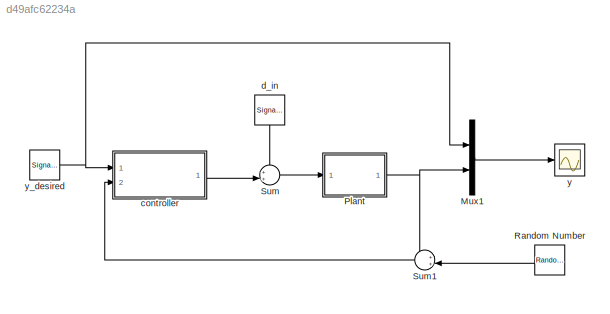
MODEL slx_d49afc62234a
KIND model
CONFIG AbsTol = auto
CONFIG EnableMultiTasking = on
CONFIG FixedStep = auto
CONFIG MaxStep = auto
CONFIG MinStep = auto
CONFIG RelTol = 1e-3
CONFIG SampleTimeConstraint = Unconstrained
CONFIG Solver = ode45
CONFIG SolverName = ode45
CONFIG StartTime = 0.0
CONFIG StopTime = 100
BLOCK [Mux] Mux1
  DisplayOption = bar
  Inputs = 2
  Ports = [2, 1]
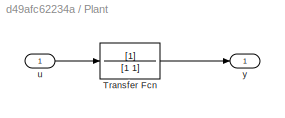
BLOCK [SubSystem] Plant
  Ports = [1, 1]
  RequestExecContextInheritance = off
BLOCK [TransferFcn] Plant/Transfer Fcn
  Denominator = [1 1]
BLOCK [Inport] Plant/u
  IconDisplay = Port number
BLOCK [Outport] Plant/y
  IconDisplay = Port number
BLOCK [RandomNumber] Random Number
  SampleTime = P.Ts
  Variance = .01
BLOCK [Sum] Sum
  IconShape = round
  InputSameDT = off
  Inputs = ++|
  OutDataTypeStr = Inherit: Inherit via internal rule
  Ports = [2, 1]
  SaturateOnIntegerOverflow = off
BLOCK [Sum] Sum1
  IconShape = round
  InputSameDT = off
  Inputs = ++|
  OutDataTypeStr = Inherit: Inherit via internal rule
  Ports = [2, 1]
  SaturateOnIntegerOverflow = off
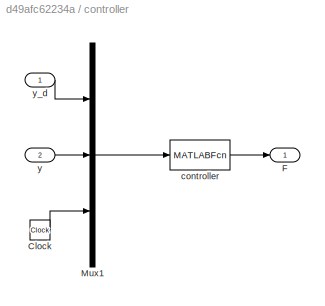
BLOCK [SubSystem] controller
  Ports = [2, 1]
  RequestExecContextInheritance = off
BLOCK [Clock] controller/Clock
BLOCK [Outport] controller/F
  IconDisplay = Port number
BLOCK [Mux] controller/Mux1
  DisplayOption = bar
  Inputs = 3
  Ports = [3, 1]
BLOCK [MATLABFcn] controller/controller
  MATLABFcn = ctrl(u,P)
  OutputDimensions = 1
  Ports = [1, 1]
  SampleTime = P.Ts
BLOCK [Inport] controller/y
  IconDisplay = Port number
  Port = 2
BLOCK [Inport] controller/y_d
  IconDisplay = Port number
BLOCK [SignalGenerator] d_in
  Frequency = 0.1
  Ports = [0, 1]
  Units = rad/sec
BLOCK [Scope] y
  Floating = off
  NumInputPorts = 1
  Ports = [1]
  ScopeSpecificationString = Simulink.scopes.TimeScopeBlockCfg('CurrentConfiguration', extmgr.ConfigurationSet(extmgr.Configuration('Core','General UI',true,'FigureColor',[1 1 1]),extmgr.Configuration('Core','Source UI',true),extmgr.Configuration('Sources','WiredSimulink',true,'DataLoggingVariableName','ScopeData1','DataLoggingSaveFormat','StructureWithTime','DataLoggingDecimation','1','DataLoggingDecimateData',true),extmgr.C...<+2763ch>
BLOCK [SignalGenerator] y_desired
  Frequency = 0.02
  Ports = [0, 1]
  WaveForm = square
LINE Mux1:1 -> y:1
LINE Plant/Transfer Fcn:1 -> Plant/y:1
LINE Plant/u:1 -> Plant/Transfer Fcn:1
NET Plant:1 -> Mux1:2, Sum1:1
LINE Random Number:1 -> Sum1:2
LINE Sum1:1 -> controller:2
LINE Sum:1 -> Plant:1
LINE controller/Clock:1 -> controller/Mux1:3
LINE controller/Mux1:1 -> controller/controller:1
LINE controller/controller:1 -> controller/F:1
LINE controller/y:1 -> controller/Mux1:2
LINE controller/y_d:1 -> controller/Mux1:1
LINE controller:1 -> Sum:2
LINE d_in:1 -> Sum:1
NET y_desired:1 -> Mux1:1, controller:1
note: NET lines group one-source signal fan-out (src -> all destinations, sorted); 1:1 wires keep LINE
